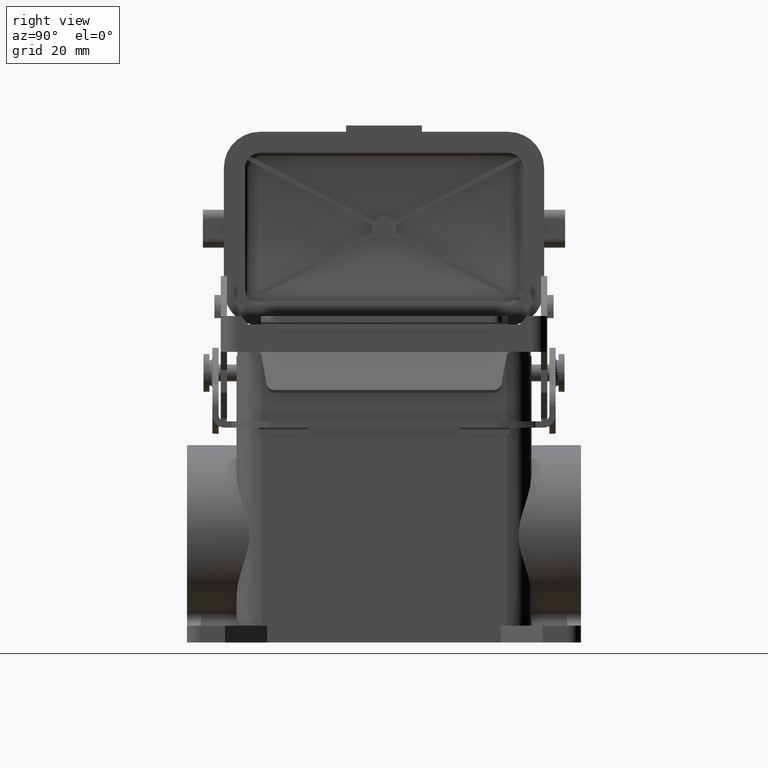
[diagram: clean part render]
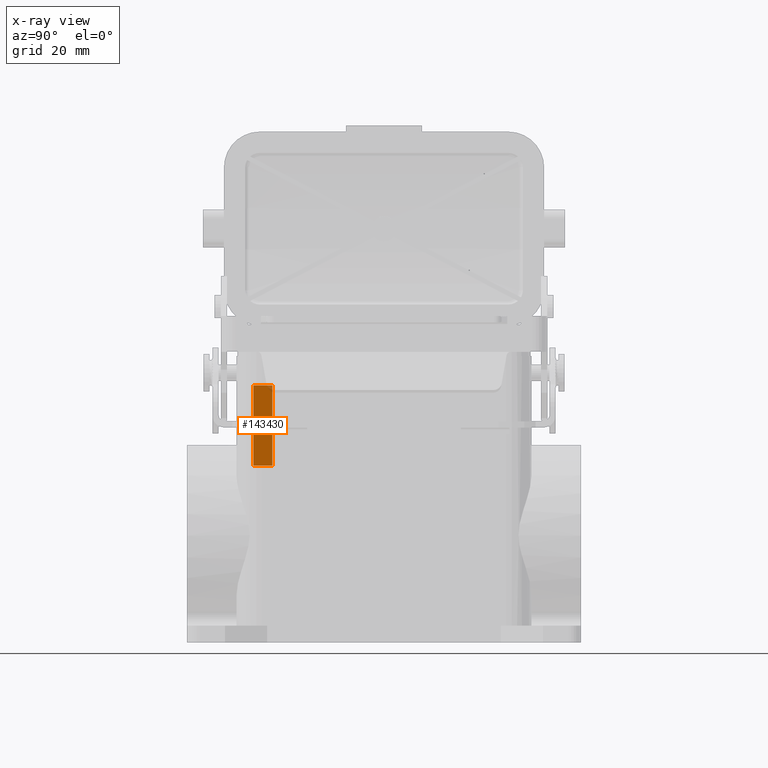
[diagram: x-ray — body ghosted, one internal face saturated and labeled with its STEP entity id]
A machine part, right view, then the same camera in x-ray: the body is ghosted and one INTERNAL B-rep face — a face not visible from any outside direction — is saturated and labeled: STEP entity #143430.
In plain terms, the highlighted planar face has unit normal (-1, 0, 0).
Its self-contained STEP definition (entity closure, byte-faithful):
#141670=CARTESIAN_POINT('',(-31.,-10.,-3.));
#141680=DIRECTION('',(0.,0.,-1.));
#141690=VECTOR('',#141680,19.);
#141700=LINE('',#141670,#141690);
#141710=CARTESIAN_POINT('',(-31.,-10.,-3.));
#141720=VERTEX_POINT('',#141710);
#141730=CARTESIAN_POINT('',(-31.,-10.,-22.));
#141740=VERTEX_POINT('',#141730);
#141750=EDGE_CURVE('',#141720,#141740,#141700,.T.);
#143130=CARTESIAN_POINT('',(-26.5,-10.,-3.));
#143140=DIRECTION('',(0.,1.,0.));
#143150=DIRECTION('',(0.,0.,1.));
#143160=AXIS2_PLACEMENT_3D('',#143130,#143140,#143150);
#143170=PLANE('',#143160);
#143180=CARTESIAN_POINT('',(-26.5,-10.,-3.));
#143190=DIRECTION('',(0.,0.,-1.));
#143200=VECTOR('',#143190,19.);
#143210=LINE('',#143180,#143200);
#143220=CARTESIAN_POINT('',(-26.5,-10.,-3.));
#143230=VERTEX_POINT('',#143220);
#143240=CARTESIAN_POINT('',(-26.5,-10.,-22.));
#143250=VERTEX_POINT('',#143240);
#143260=EDGE_CURVE('',#143230,#143250,#143210,.T.);
#143270=ORIENTED_EDGE('',*,*,#143260,.T.);
#143280=CARTESIAN_POINT('',(-31.,-10.,-3.));
#143290=DIRECTION('',(1.,0.,0.));
#143300=VECTOR('',#143290,4.5);
#143310=LINE('',#143280,#143300);
#143320=EDGE_CURVE('',#141720,#143230,#143310,.T.);
#143330=ORIENTED_EDGE('',*,*,#143320,.T.);
#143340=ORIENTED_EDGE('',*,*,#141750,.F.);
#143350=CARTESIAN_POINT('',(-26.5,-10.,-22.));
#143360=DIRECTION('',(-1.,0.,0.));
#143370=VECTOR('',#143360,4.5);
#143380=LINE('',#143350,#143370);
#143390=EDGE_CURVE('',#143250,#141740,#143380,.T.);
#143400=ORIENTED_EDGE('',*,*,#143390,.T.);
#143410=EDGE_LOOP('',(#143400,#143340,#143330,#143270));
#143420=FACE_OUTER_BOUND('',#143410,.T.);
#143430=ADVANCED_FACE('',(#143420),#143170,.T.);